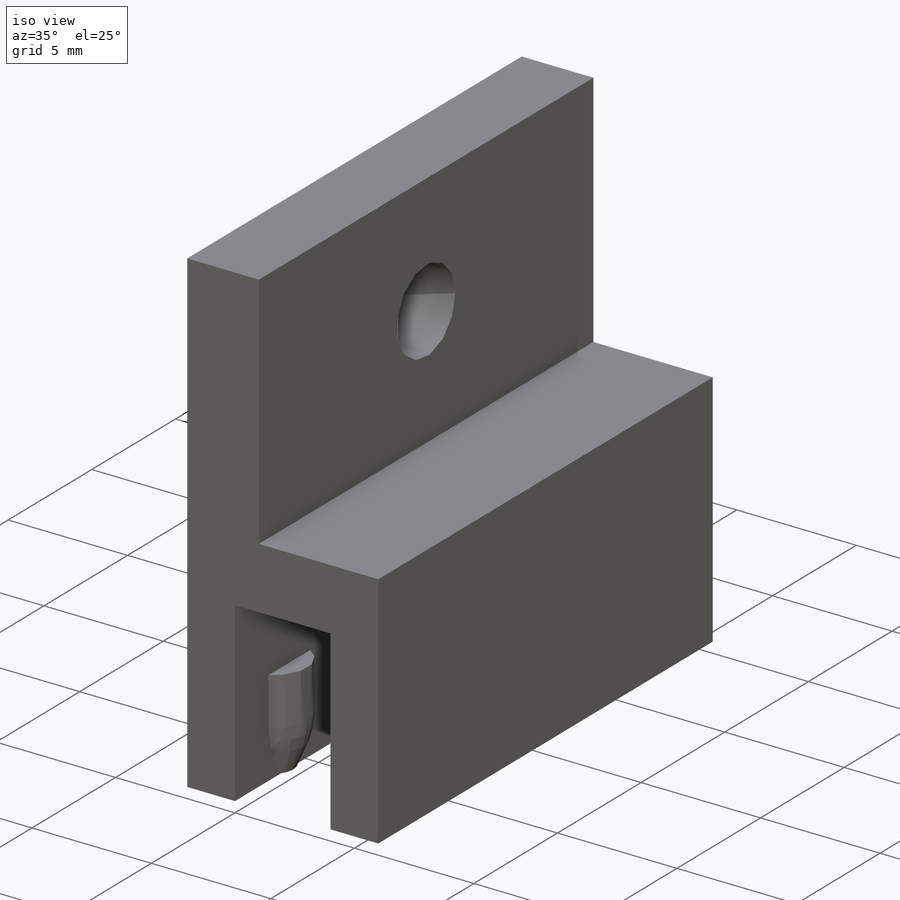
[diagram: iso view]
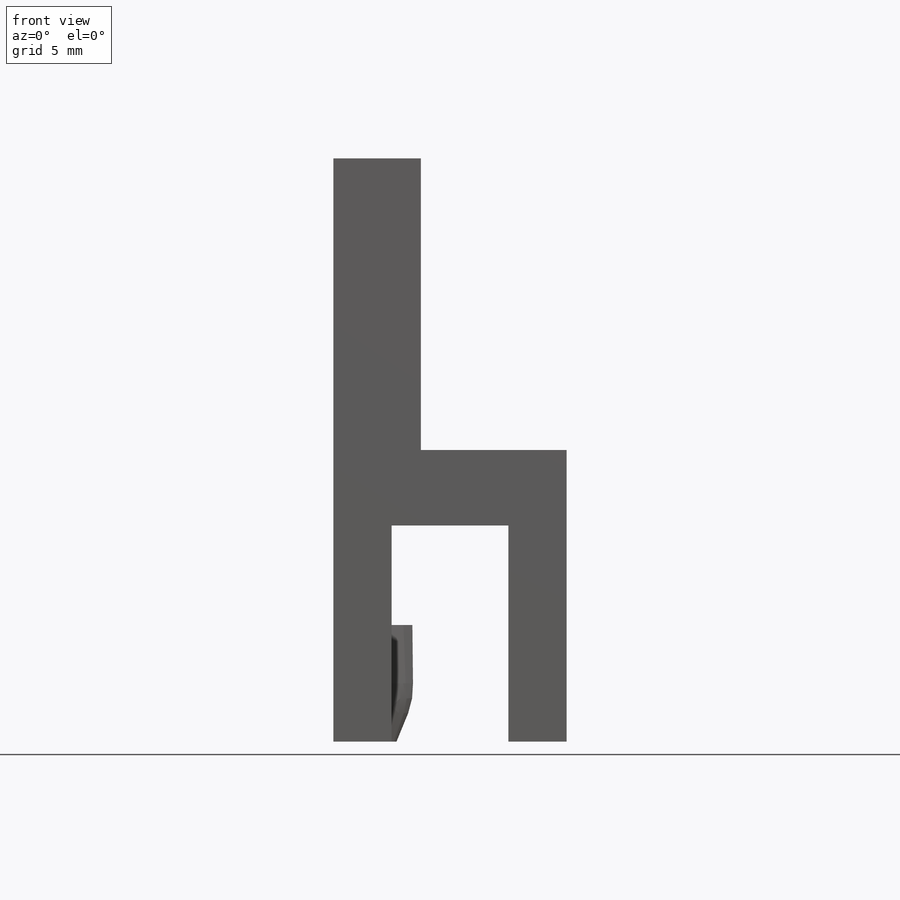
[diagram: front view]
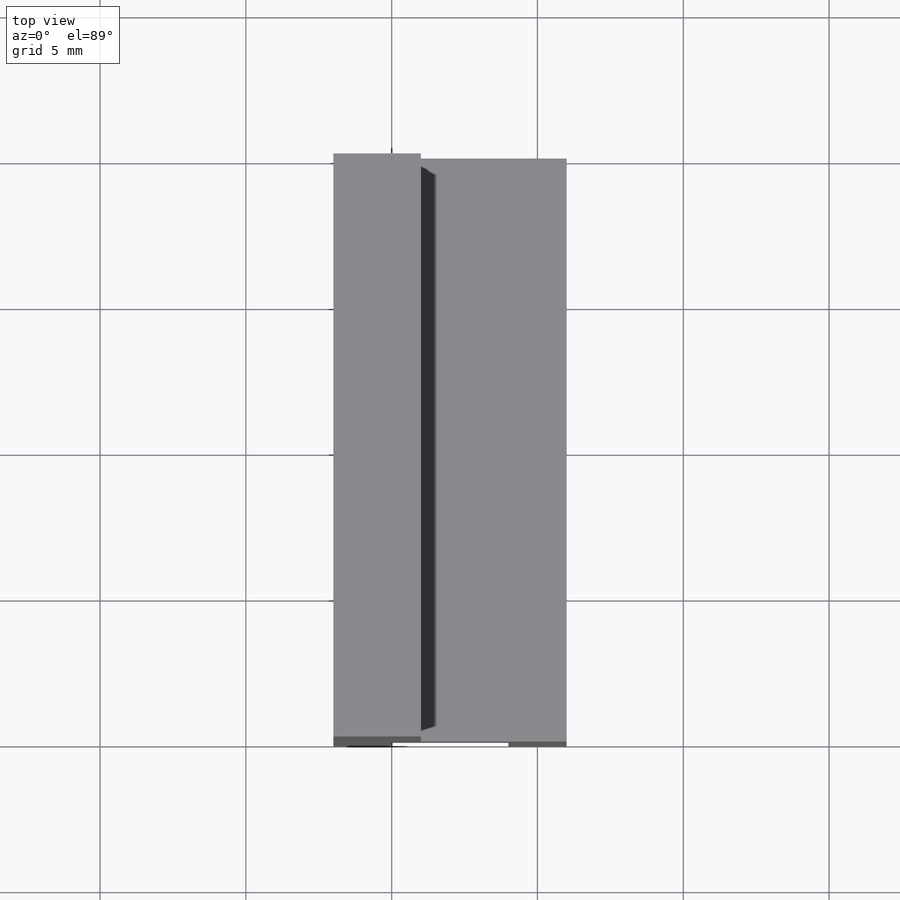
[diagram: top view]
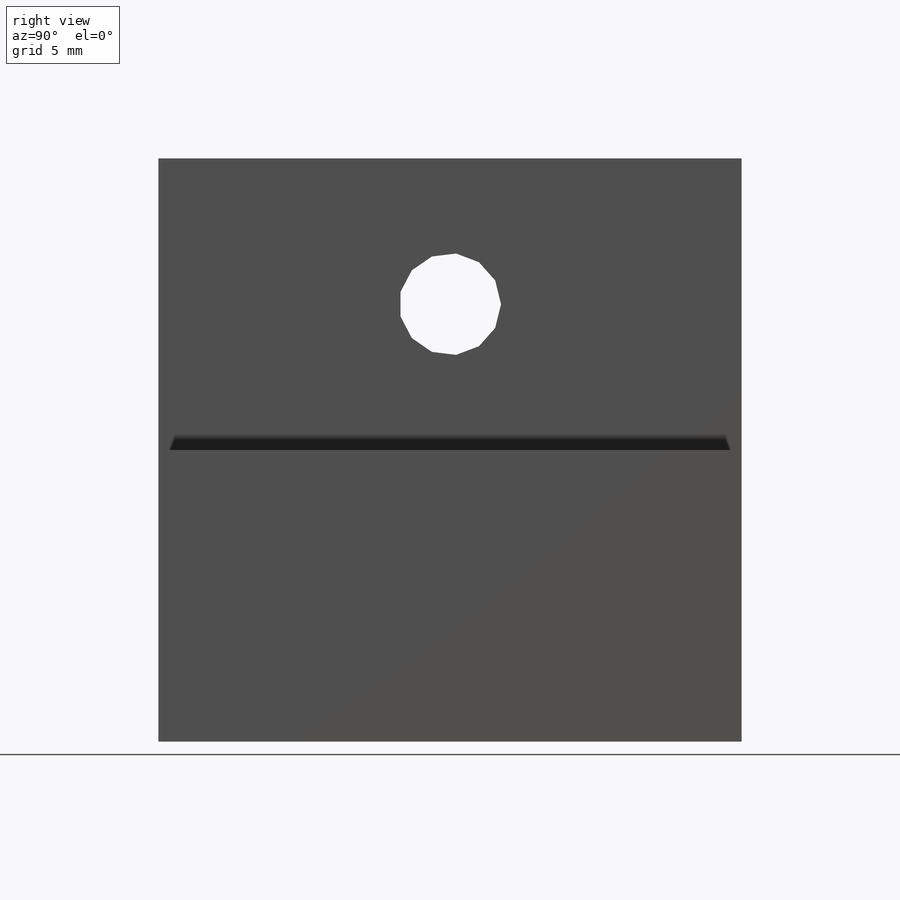
[diagram: right view]
SOLIDWORKS PART (.sldprt)
format: sldprt  version: not decoded by parser v0  size: 248,832 bytes
history: native  units: mm
features: sketch x7, extrude x2, material x1, cut_extrude x1 (+11 scaffold rows collapsed)
feature tree (22):
  scaffold x11  (default folders/planes/origin — collapsed)
  material  "Material <not specified>"
  sketch  "Sketch1"  dims[c1.D1=4.0mm c1.D2=8.0mm c2.D1=20.0mm c2.D5=2.0mm c2.D6=1.0mm c2.D7=5.0mm]
  sketch  "Sketch2"  dims[D1=10.0mm D5=3.0mm D6=1.0mm D7=5.0mm]
  sketch  "Sketch3"  dims[D1=3.5mm]
  cut_extrude  "Cut-Extrude1"  [1 undecoded]
  sketch  "Sketch4"  dims[D1=0.75mm D2=2.5mm D3=2.0mm]
  extrude  "Boss-Extrude1"  Depth=2mm
  sketch  "Sketch5"  dims[D1=1.0mm]
  sketch  "Sketch7"
  sketch  "Sketch8"  dims[D1=85.0mm]
  extrude  "Boss-Extrude2"  [1 undecoded]
decode coverage: 7 of 10 modeling features carry decoded parameters
note: 2 parameter values undecoded
note: suppression state not decoded; provenance and decode notes live in map.json
